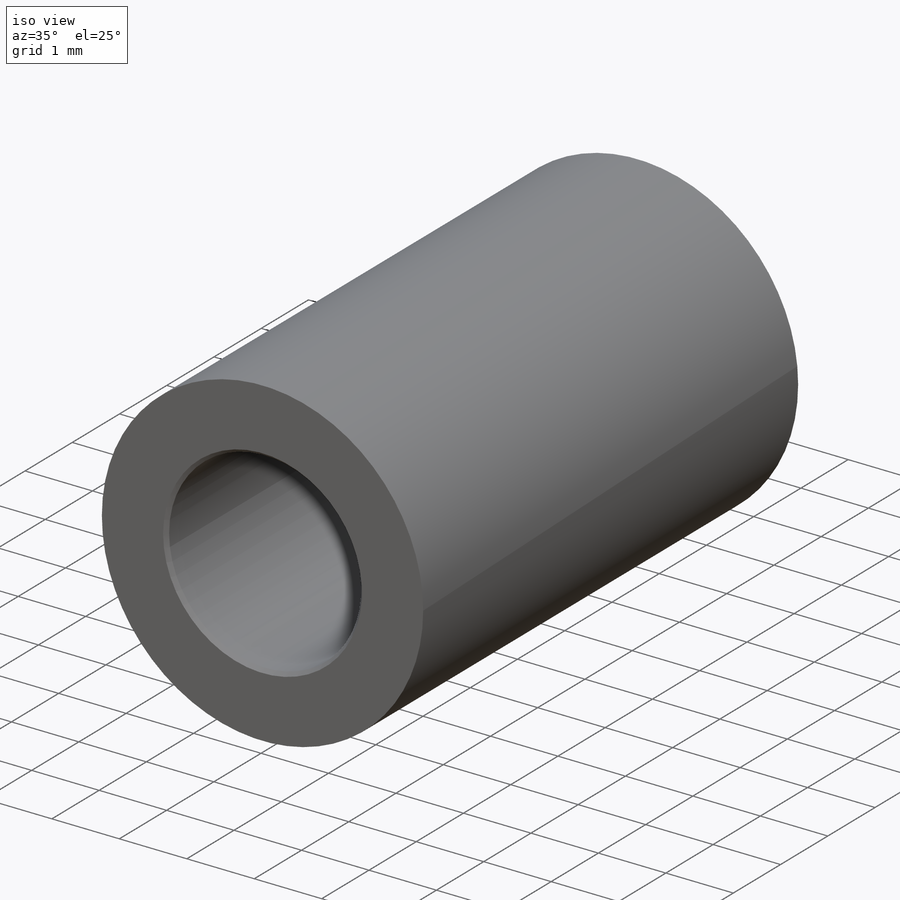
[diagram: iso view]
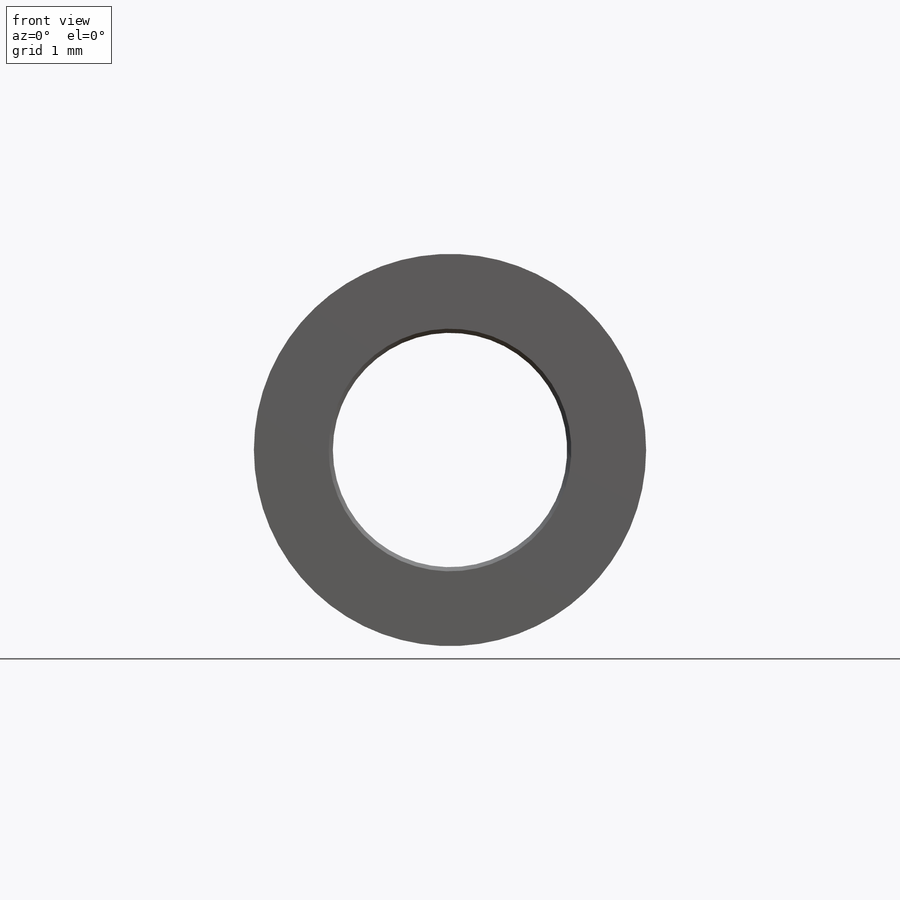
[diagram: front view]
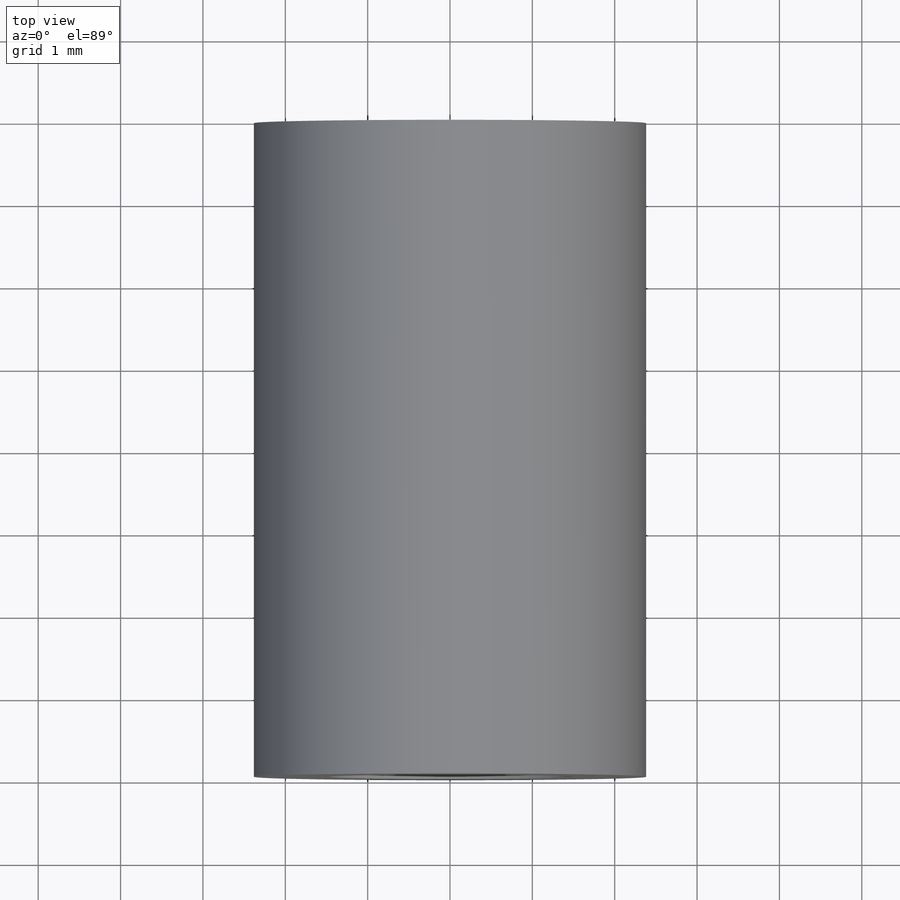
[diagram: top view]
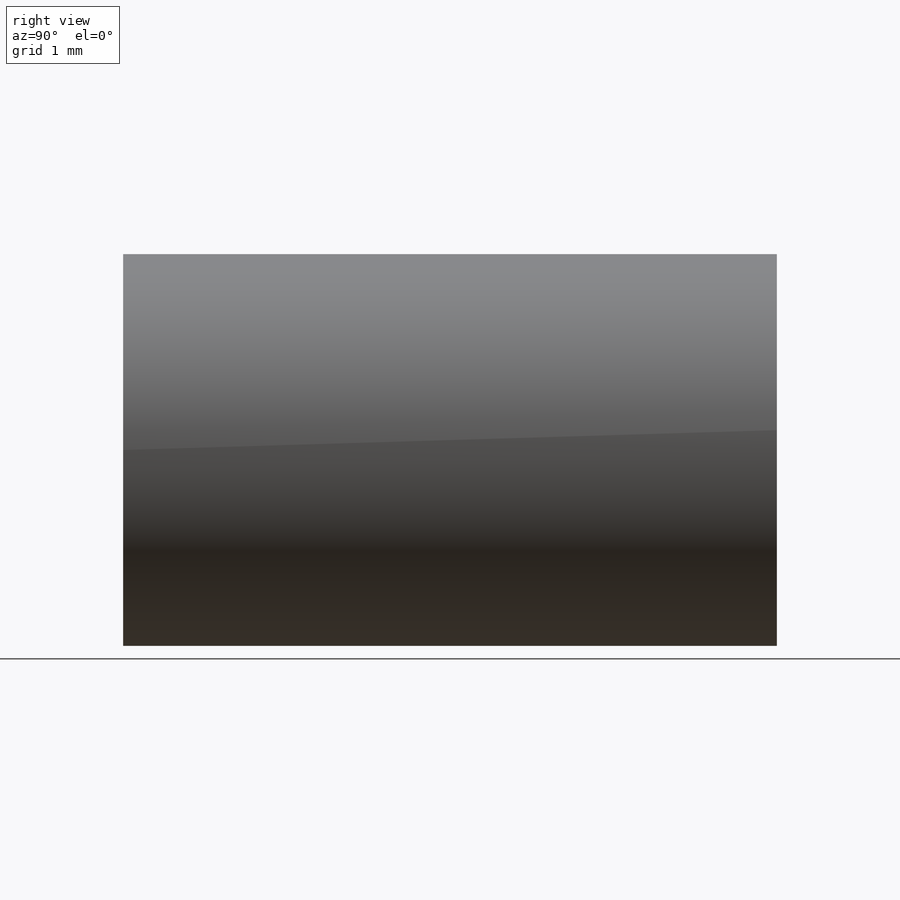
[diagram: right view]
SOLIDWORKS PART (.sldprt)
format: sldprt  version: not decoded by parser v0  size: 340,992 bytes
history: native  units: mm
features: sketch x9, cut_extrude x3, material x1, extrude x1, helix x1, sweep x1, mirror x1, revolve x1 (+15 scaffold rows collapsed; 1 parser-record rows omitted)
feature tree (34):
  scaffold x15  (default folders/planes/origin — collapsed)
  material  "Material <not specified>"
  sketch  "Sketch3"  dims[Length=7.9375mm Min Thread Length=12.7mm D1=12.7mm Thread Dia=2.8448mm Hex=15.875mm OD=6.35mm]
  sketch  "Sketch1"  dims[D1=~55.334496mm Thread Dia=~24.049222mm Hex=~55.334496mm]
  extrude  "Extrude1"  [1 undecoded]
  sketch  "Sketch11"
  helix  "Helix/Spiral1"  Pitch=8.5725mm
  sketch  "Sketch12"  dims[c1.D1=~0.079375mm c1.D2=0.3175mm c1.D3=~0.573324mm c2.D3=60.0deg]
  sweep  "Sweep1"
  sketch  "Sketch6"  dims[D1=0.0mm]
  cut_extrude  "Extrude2"  [1 undecoded]
  sketch  "Sketch7"  dims[D1=0.0508mm]
  cut_extrude  "Extrude3"  [1 undecoded]
  mirror  "Mirror1"
  parser-record x1  (decoder bookkeeping rows leaked as tree rows — omitted from the tree; the rows remain in map.json)
  sketch  "Sketch9"
  revolve  "Revolve"  Angle=360deg
  sketch  "Sketch10"
  sketch  "Sketch13"  dims[D1=4.7625mm]
  cut_extrude  "Cut-Extrude1"  [1 undecoded]
decode coverage: 8 of 17 modeling features carry decoded parameters
note: ~ marks probable driven/reference dimensions
note: 4 parameter values undecoded
summary: no parameter record found for 4 features
note: suppression state not decoded; provenance and decode notes live in map.json
